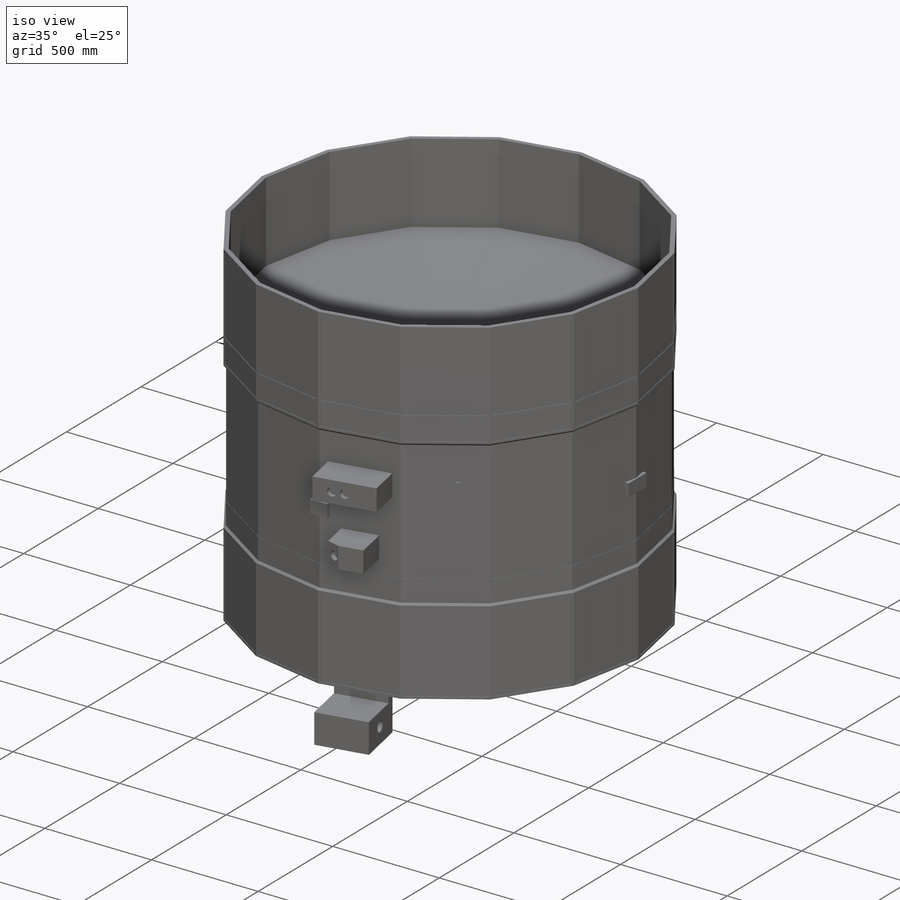
[diagram: iso view]
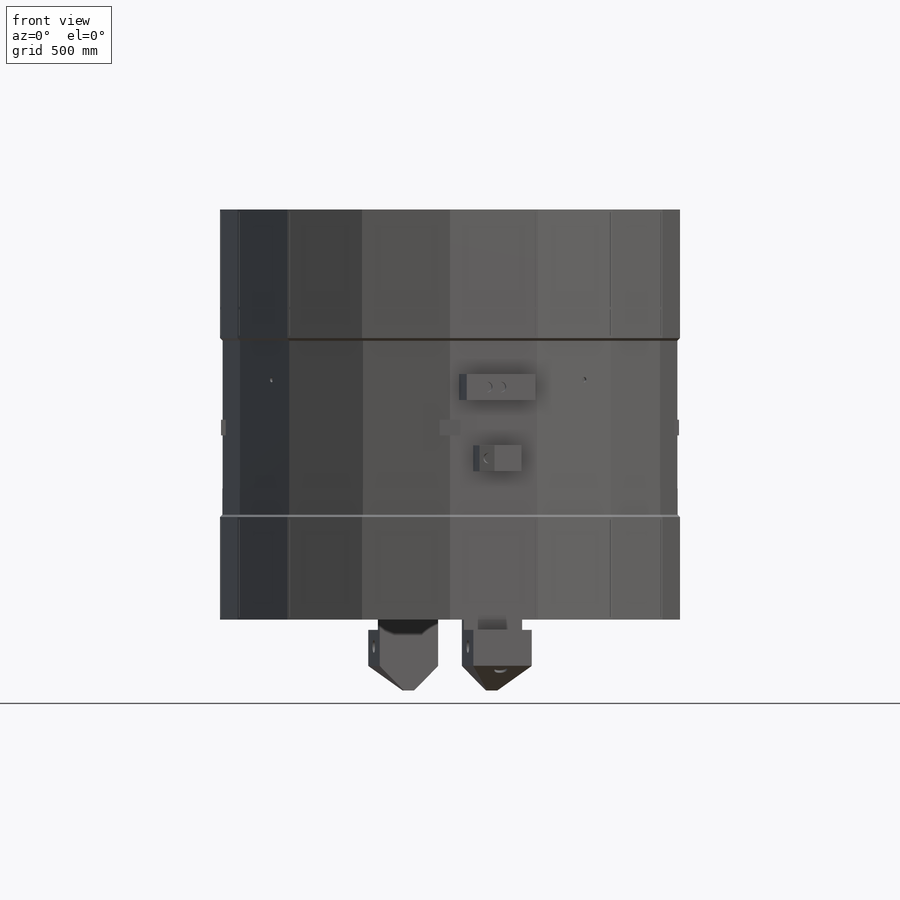
[diagram: front view]
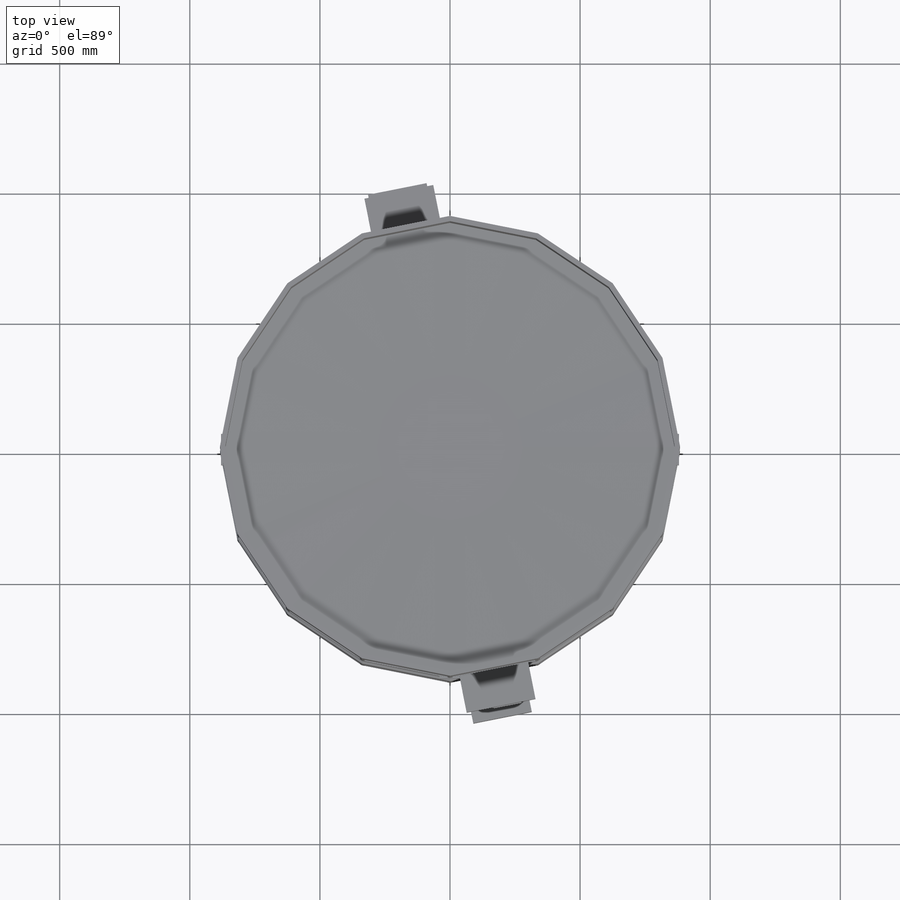
[diagram: top view]
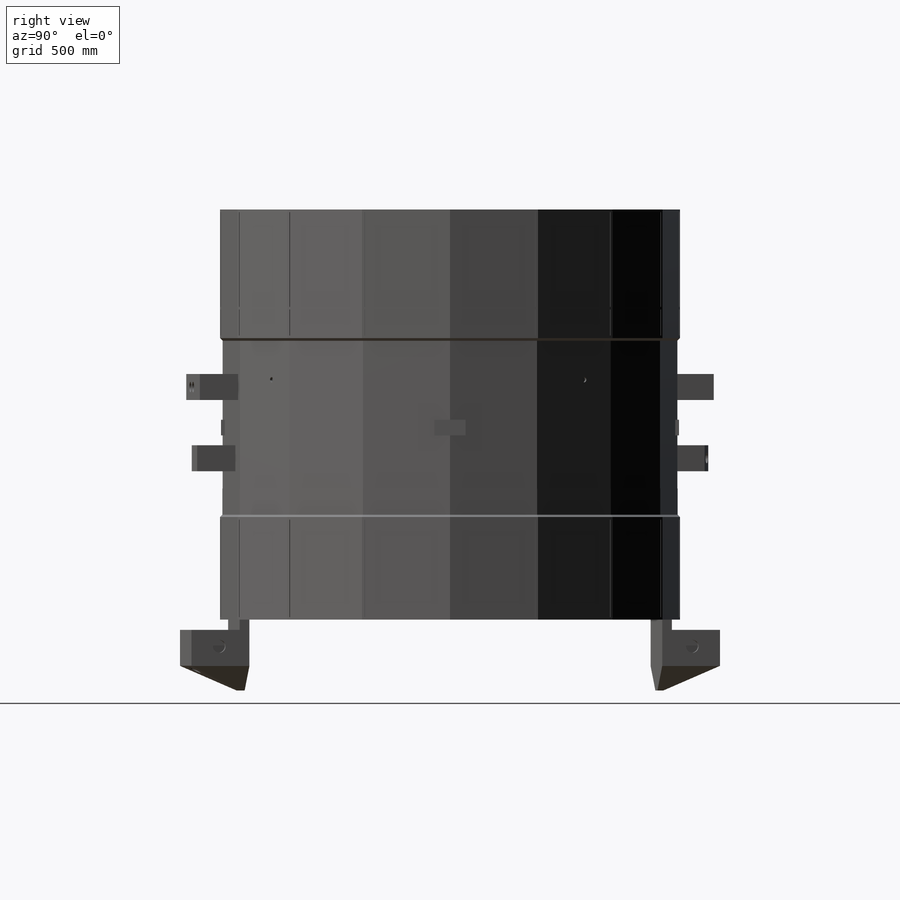
[diagram: right view]
SOLIDWORKS PART (.sldprt)
format: sldprt  version: not decoded by parser v0  size: 1,427,456 bytes
history: native  units: mm
features: sketch x17, cut_extrude x10, extrude x7, chamfer x6, pattern_circular x4, plane x4, mirror x2, material x1 (+12 scaffold rows collapsed)
feature tree (63):
  scaffold x12  (default folders/planes/origin — collapsed)
  material  "Material <not specified>"
  sketch  "Sketch1"  dims[D1=1733.5mm]
  extrude  "Boss-Extrude1"  Depth=1576.3mm
  sketch  "Sketch2"  dims[D1=504.4mm D2=504.4mm]
  cut_extrude  "Cut-Extrude1"  Depth=10mm
  sketch  "Sketch3"  dims[c1.D2=10.0mm c1.D3=100.0mm c1.D5=10.0mm c1.D6=100.0mm c2.D5=10.0mm c2.D6=100.0mm c2.D7=494.4mm c2.D3=10.0mm c2.D1=10.0mm c2.D4=10.0mm]
  cut_extrude  "Cut-Extrude2"  Depth=2mm
  sketch  "Sketch5"  dims[D1=20.0mm]
  cut_extrude  "Cut-Extrude3"  Depth=9mm
  pattern_circular  "CirPattern3"  Count=16 Angle=360deg
  chamfer  "Chamfer1"  Distance=10mm Angle=45deg
  chamfer  "Chamfer2"  Distance=10mm Angle=45deg
  sketch  "Sketch6"  dims[D1=20.0mm]
  cut_extrude  "Cut-Extrude4"  [1 undecoded]
  sketch  "Sketch7"  dims[D1=550.0mm]
  cut_extrude  "Cut-Extrude5"  Depth=20mm
  chamfer  "Chamfer3"  Distance=580mm
  plane  "Center"
  mirror  "Mirror1"
  chamfer  "Chamfer4"  Distance=20mm
  plane  "Plane1"  Offset=830mm
  sketch  "Sketch8"  dims[D1=120.0mm D2=60.0mm D3=50.0mm]
  extrude  "Boss-Extrude2"  Depth=50mm
  plane  "Plane2"  Offset=830mm
  sketch  "Sketch9"  dims[D1=60.0mm D2=80.0mm D3=50.0mm]
  extrude  "Boss-Extrude3"  Depth=50mm
  pattern_circular  "CirPattern4"  Count=2 Angle=360deg
  sketch  "Sketch10"  dims[D1=20.0mm]
  cut_extrude  "Cut-Extrude6"  Depth=10mm
  pattern_circular  "CirPattern5"  Count=4 Angle=360deg
  sketch  "Sketch12"  dims[c1.D1=272.288mm c1.D2=228.6mm c1.D3=228.6mm c1.D4=20.0mm c1.D5=~132.805036mm c2.D5=45.0deg]
  extrude  "Boss-Extrude4"  Depth=38.1mm
  sketch  "Sketch13"  dims[D1=39.37mm]
  extrude  "Boss-Extrude5"  Depth=188.6mm
  chamfer  "Chamfer5"  Distance=95mm Angle=65deg
  sketch  "Sketch14"  dims[D1=50.0mm]
  cut_extrude  "Cut-Extrude7"  Depth=10mm
  plane  "Plane4"
  sketch  "Sketch20"  dims[D1=50.0mm]
  cut_extrude  "Cut-Extrude8"  Depth=20mm
  mirror  "Mirror2"
  sketch  "Sketch21"  dims[D1=159.004mm D2=100.0mm]
  extrude  "Boss-Extrude9"  Depth=149.86mm
  chamfer  "Chamfer6"  Distance=25mm Angle=65deg
  sketch  "Sketch22"  dims[D1=40.0mm]
  cut_extrude  "Cut-Extrude9"  Depth=20mm
  sketch  "Sketch23"  dims[D1=269.24mm D2=100.0mm]
  extrude  "Boss-Extrude10"  [1 undecoded]
  sketch  "Sketch24"  dims[D1=40.0mm D2=40.0mm]
  cut_extrude  "Cut-Extrude10"  Depth=20mm
  pattern_circular  "CirPattern6"  Count=2 Angle=360deg
decode coverage: 42 of 46 modeling features carry decoded parameters
note: ~ marks probable driven/reference dimensions
note: 2 parameter values undecoded
note: suppression state not decoded; provenance and decode notes live in map.json
